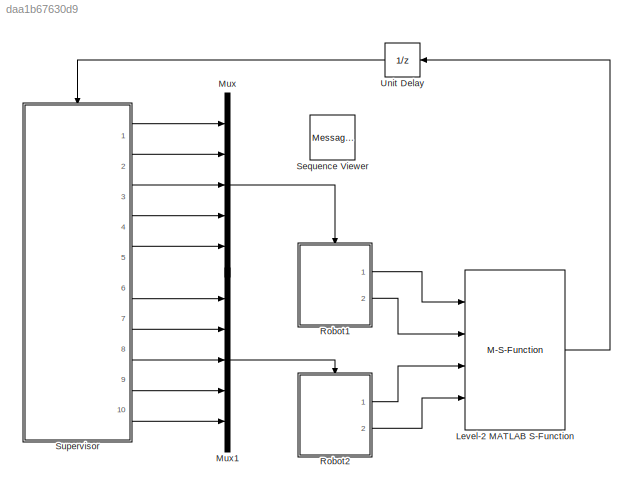
MODEL slx_daa1b67630d9
KIND model
CONFIG AbsTol = auto
CONFIG EnableMultiTasking = off
CONFIG FixedStep = auto
CONFIG MaxStep = auto
CONFIG MinStep = auto
CONFIG RelTol = 1e-3
CONFIG SampleTimeConstraint = Unconstrained
CONFIG SolverName = VariableStepAuto
CONFIG StartTime = 0.0
CONFIG StopTime = Inf
BLOCK [M-S-Function] Level-2 MATLAB S-Function
  FunctionName = coppeliaScene
  Ports = [4, 1]
BLOCK [Mux] Mux
  DisplayOption = bar
  Inputs = 5
  Ports = [5, 1]
BLOCK [Mux] Mux1
  DisplayOption = bar
  Inputs = 5
  Ports = [5, 1]
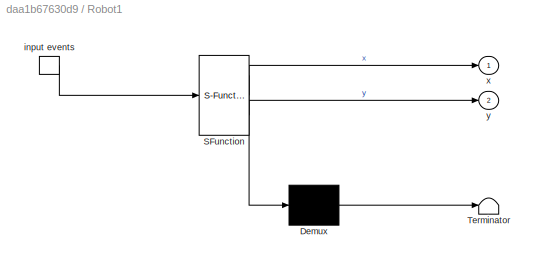
BLOCK [SubSystem] Robot1
  ErrorFcn = Stateflow.Translate.translate
  PermitHierarchicalResolution = ExplicitOnly
  Ports = [0, 2, 0, 1]
  RequestExecContextInheritance = off
  SFBlockType = Chart
  TreatAsAtomicUnit = on
BLOCK [Demux] Robot1/ Demux 
  Outputs = 1
  Ports = [1, 1]
BLOCK [S-Function] Robot1/ SFunction 
  EnableBusSupport = on
  FunctionName = sf_sfun
  PortCounts = [1 3]
  Ports = [1, 3]
  SFcnIsStateOwnerBlock = off
  SFunctionDeploymentMode = off
  Tag = Stateflow S-Function 3
BLOCK [Terminator] Robot1/ Terminator 
BLOCK [TriggerPort] Robot1/input events
  Ports = [0, 1]
  ShowOutputPort = on
  StatesWhenEnabling = held
  TriggerType = function-call
  VariantControl = (inherit)
BLOCK [Outport] Robot1/x
BLOCK [Outport] Robot1/y
  Port = 2
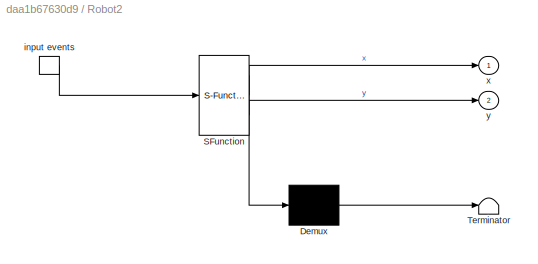
BLOCK [SubSystem] Robot2
  ErrorFcn = Stateflow.Translate.translate
  PermitHierarchicalResolution = ExplicitOnly
  Ports = [0, 2, 0, 1]
  RequestExecContextInheritance = off
  SFBlockType = Chart
  TreatAsAtomicUnit = on
BLOCK [Demux] Robot2/ Demux 
  Outputs = 1
  Ports = [1, 1]
BLOCK [S-Function] Robot2/ SFunction 
  EnableBusSupport = on
  FunctionName = sf_sfun
  PortCounts = [1 3]
  Ports = [1, 3]
  SFcnIsStateOwnerBlock = off
  SFunctionDeploymentMode = off
  Tag = Stateflow S-Function 1
BLOCK [Terminator] Robot2/ Terminator 
BLOCK [TriggerPort] Robot2/input events
  Ports = [0, 1]
  ShowOutputPort = on
  StatesWhenEnabling = held
  TriggerType = function-call
  VariantControl = (inherit)
BLOCK [Outport] Robot2/x
BLOCK [Outport] Robot2/y
  Port = 2
BLOCK [MessageViewer] Sequence Viewer
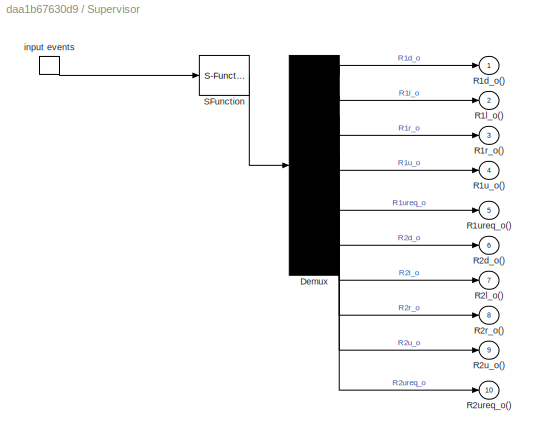
BLOCK [SubSystem] Supervisor
  ErrorFcn = Stateflow.Translate.translate
  PermitHierarchicalResolution = ExplicitOnly
  Ports = [0, 10, 0, 1]
  RequestExecContextInheritance = off
  SFBlockType = Chart
  TreatAsAtomicUnit = on
BLOCK [Demux] Supervisor/ Demux 
  Outputs = 10
  Ports = [1, 10]
BLOCK [S-Function] Supervisor/ SFunction 
  EnableBusSupport = on
  FunctionName = sf_sfun
  PortCounts = [1 1]
  Ports = [1, 1]
  SFcnIsStateOwnerBlock = off
  SFunctionDeploymentMode = off
  Tag = Stateflow S-Function 2
BLOCK [Outport] Supervisor/R1d_o()
BLOCK [Outport] Supervisor/R1l_o()
  Port = 2
BLOCK [Outport] Supervisor/R1r_o()
  Port = 3
BLOCK [Outport] Supervisor/R1u_o()
  Port = 4
BLOCK [Outport] Supervisor/R1ureq_o()
  Port = 5
BLOCK [Outport] Supervisor/R2d_o()
  Port = 6
BLOCK [Outport] Supervisor/R2l_o()
  Port = 7
BLOCK [Outport] Supervisor/R2r_o()
  Port = 8
BLOCK [Outport] Supervisor/R2u_o()
  Port = 9
BLOCK [Outport] Supervisor/R2ureq_o()
  Port = 10
BLOCK [TriggerPort] Supervisor/input events
  Ports = [0, 1]
  ShowOutputPort = on
  StatesWhenEnabling = held
  VariantControl = (inherit)
BLOCK [UnitDelay] Unit Delay
  HasFrameUpgradeWarning = on
  SampleTime = -1
LINE Level-2 MATLAB S-Function:1 -> Unit Delay:1
LINE Mux1:1 -> Robot2:trigger
LINE Mux:1 -> Robot1:trigger
LINE Robot1:1 -> Level-2 MATLAB S-Function:1
LINE Robot1:2 -> Level-2 MATLAB S-Function:2
LINE Robot2:1 -> Level-2 MATLAB S-Function:3
LINE Robot2:2 -> Level-2 MATLAB S-Function:4
LINE Supervisor:1 -> Mux:1
LINE Supervisor:10 -> Mux1:5
LINE Supervisor:2 -> Mux:2
LINE Supervisor:3 -> Mux:3
LINE Supervisor:4 -> Mux:4
LINE Supervisor:5 -> Mux:5
LINE Supervisor:6 -> Mux1:1
LINE Supervisor:7 -> Mux1:2
LINE Supervisor:8 -> Mux1:3
LINE Supervisor:9 -> Mux1:4
LINE Unit Delay:1 -> Supervisor:trigger
CHART Robot2 states=9 transitions=26
  STATE_LABEL 's1\nx=1;\ny=1;'
  STATE_LABEL 's2\nx=1;\ny=2;'
  STATE_LABEL 's3\nx=1;\ny=3;'
  STATE_LABEL 's4\nx=2;\ny=1;'
  STATE_LABEL 's5\nx=2;\ny=2;'
  STATE_LABEL 's6\nx=2;\ny=3;'
  STATE_LABEL 's7\nx=3;\ny=1;'
  STATE_LABEL 's8\nx=3;\ny=2;'
  STATE_LABEL 's9\nx=3;\ny=3;'
CHART Supervisor states=70 transitions=335
  STATE_LABEL 's1'
  STATE_LABEL 's2'
  STATE_LABEL 's3'
  STATE_LABEL 's4'
  STATE_LABEL 's5'
  STATE_LABEL 's6'
  STATE_LABEL 's7'
  STATE_LABEL 's8'
  STATE_LABEL 's9'
  STATE_LABEL 's10'
  STATE_LABEL 's11'
  STATE_LABEL 's12'
  STATE_LABEL 's13'
  STATE_LABEL 's14'
  STATE_LABEL 's15'
  STATE_LABEL 's16'
  STATE_LABEL 's17'
  STATE_LABEL 's18'
  STATE_LABEL 's19'
  STATE_LABEL 's20'
  STATE_LABEL 's21'
  STATE_LABEL 's22'
  STATE_LABEL 's23'
  STATE_LABEL 's24'
  STATE_LABEL 's25'
  STATE_LABEL 's26'
  STATE_LABEL 's27'
  STATE_LABEL 's28'
  STATE_LABEL 's29'
  STATE_LABEL 's30'
  STATE_LABEL 's31'
  STATE_LABEL 's32'
  STATE_LABEL 's33'
  STATE_LABEL 's34'
  STATE_LABEL 's35'
  STATE_LABEL 's36'
  STATE_LABEL 's37'
  STATE_LABEL 's38'
  STATE_LABEL 's39'
  STATE_LABEL 's40'
CHART Robot1 states=9 transitions=26
  STATE_LABEL 's1\nx=1;\ny=1;'
  STATE_LABEL 's2\nx=1;\ny=2;'
  STATE_LABEL 's3\nx=1;\ny=3;'
  STATE_LABEL 's4\nx=2;\ny=1;'
  STATE_LABEL 's5\nx=2;\ny=2;'
  STATE_LABEL 's6\nx=2;\ny=3;'
  STATE_LABEL 's7\nx=3;\ny=1;'
  STATE_LABEL 's8\nx=3;\ny=2;'
  STATE_LABEL 's9\nx=3;\ny=3;'
CHART  states=0 transitions=0
CHART  states=0 transitions=0
CHART  states=0 transitions=0
